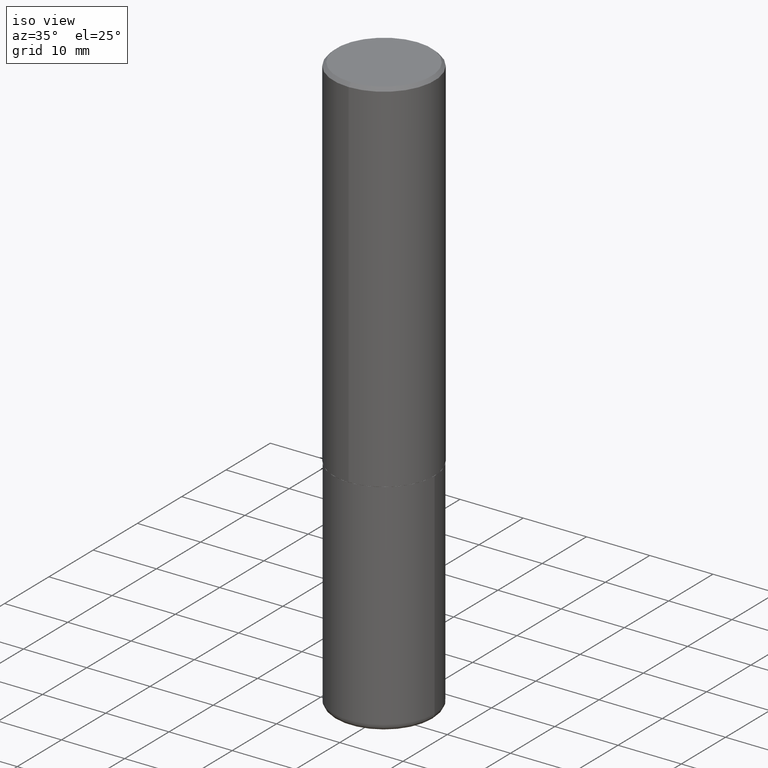
[diagram: clean part render]
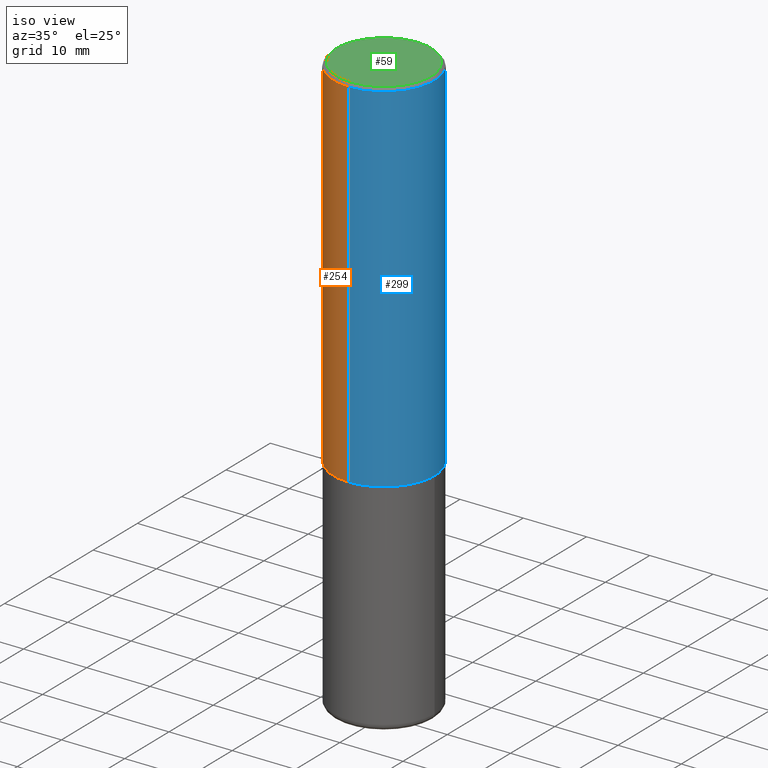
[diagram: same view with three faces highlighted in distinct colors, each labeled with its STEP entity id]
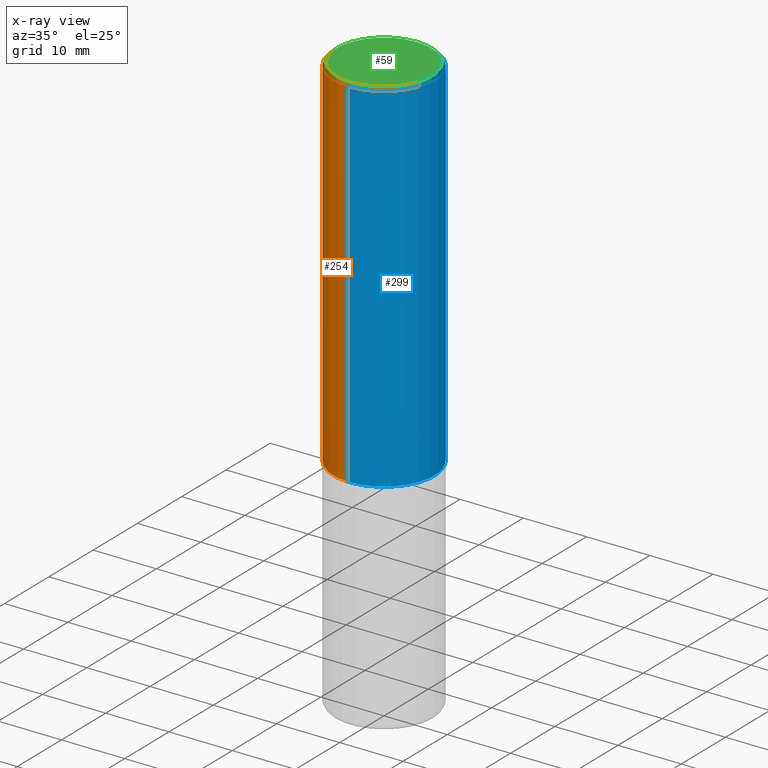
[diagram: x-ray of the same camera — body ghosted, the three highlighted faces saturated]
A machine part, iso view with three faces highlighted in distinct colors.
The next image is the same camera in x-ray (body ghosted, the three faces saturated) — at least one of them is partly hidden behind the body in this view.
Their STEP definitions:

[orange] entity #254 — the highlighted cylindrical surface (partial cylindrical patch) has radius 7.9997 mm, axis along (-0, 0, 1).
#15 = ORIENTED_EDGE ( 'NONE', *, *, #84, .F. ) ;
#18 = CIRCLE ( 'NONE', #329, 0.3149500000000000632 ) ;
#28 = FACE_OUTER_BOUND ( 'NONE', #170, .T. ) ;
#31 = CARTESIAN_POINT ( 'NONE',  ( 5.485775925940652970E-29, -7.830548597747266147E-15, -2.242999999999999883 ) ) ;
#42 = ORIENTED_EDGE ( 'NONE', *, *, #304, .T. ) ;
#62 = DIRECTION ( 'NONE',  ( -2.445731576433639542E-29, 3.491105036891335583E-15, 1.000000000000000000 ) ) ;
#67 = CYLINDRICAL_SURFACE ( 'NONE', #284, 0.3149500000000001743 ) ;
#69 = DIRECTION ( 'NONE',  ( -2.445731576433639542E-29, 3.491105036891335583E-15, 1.000000000000000000 ) ) ;
#73 = LINE ( 'NONE', #265, #88 ) ;
#80 = CIRCLE ( 'NONE', #239, 0.3149500000000002853 ) ;
#84 = EDGE_CURVE ( 'NONE', #281, #418, #122, .T. ) ;
#88 = VECTOR ( 'NONE', #295, 39.37007874015748143 ) ;
#97 = CARTESIAN_POINT ( 'NONE',  ( 0.000000000000000000, 0.000000000000000000, 0.000000000000000000 ) ) ;
#102 = ORIENTED_EDGE ( 'NONE', *, *, #384, .T. ) ;
#122 = LINE ( 'NONE', #414, #396 ) ;
#125 = DIRECTION ( 'NONE',  ( -2.445731576433639542E-29, 3.491105036891335583E-15, 1.000000000000000000 ) ) ;
#126 = DIRECTION ( 'NONE',  ( -2.445731576433639542E-29, 3.491105036891335583E-15, 1.000000000000000000 ) ) ;
#159 = CARTESIAN_POINT ( 'NONE',  ( 2.199284095337290265E-15, 0.3149500000000000077, -0.02000000000000116962 ) ) ;
#170 = EDGE_LOOP ( 'NONE', ( #15, #42, #102, #245 ) ) ;
#184 = CARTESIAN_POINT ( 'NONE',  ( 4.891463152867296425E-31, -6.982210073782693945E-17, -0.02000000000000006981 ) ) ;
#189 = DIRECTION ( 'NONE',  ( -6.982962677686265922E-15, -1.000000000000000000, 3.496670018878888311E-15 ) ) ;
#195 = CARTESIAN_POINT ( 'NONE',  ( -2.160713844398143757E-15, -0.3149500000000001743, -0.01999999999999896652 ) ) ;
#227 = VERTEX_POINT ( 'NONE', #320 ) ;
#239 = AXIS2_PLACEMENT_3D ( 'NONE', #31, #126, #262 ) ;
#245 = ORIENTED_EDGE ( 'NONE', *, *, #255, .F. ) ;
#254 = ADVANCED_FACE ( 'NONE', ( #28 ), #67, .T. ) ;
#255 = EDGE_CURVE ( 'NONE', #418, #389, #18, .T. ) ;
#262 = DIRECTION ( 'NONE',  ( -6.982962677686265922E-15, -1.000000000000000000, 3.469564049740290009E-15 ) ) ;
#265 = CARTESIAN_POINT ( 'NONE',  ( -2.199284095337290265E-15, -0.3149500000000001743, 1.099523531368926621E-15 ) ) ;
#281 = VERTEX_POINT ( 'NONE', #289 ) ;
#284 = AXIS2_PLACEMENT_3D ( 'NONE', #97, #62, #412 ) ;
#289 = CARTESIAN_POINT ( 'NONE',  ( 2.237854346276464384E-15, 0.3149499999999924027, -2.243000000000000771 ) ) ;
#295 = DIRECTION ( 'NONE',  ( -2.445731576433639542E-29, 3.491105036891335583E-15, 1.000000000000000000 ) ) ;
#304 = EDGE_CURVE ( 'NONE', #281, #227, #80, .T. ) ;
#320 = CARTESIAN_POINT ( 'NONE',  ( -2.199284095337236228E-15, -0.3149500000000081124, -2.242999999999998550 ) ) ;
#329 = AXIS2_PLACEMENT_3D ( 'NONE', #184, #69, #189 ) ;
#384 = EDGE_CURVE ( 'NONE', #227, #389, #73, .T. ) ;
#389 = VERTEX_POINT ( 'NONE', #195 ) ;
#396 = VECTOR ( 'NONE', #125, 39.37007874015748143 ) ;
#412 = DIRECTION ( 'NONE',  ( -6.982962677686264344E-15, -1.000000000000000000, 3.491105036891335189E-15 ) ) ;
#414 = CARTESIAN_POINT ( 'NONE',  ( 2.237854346276435985E-15, 0.3149500000000001743, -1.099523531368926621E-15 ) ) ;
#418 = VERTEX_POINT ( 'NONE', #159 ) ;

[blue] entity #299 — the highlighted cylindrical surface (partial cylindrical patch) has radius 7.9997 mm, axis along (-0, 0, 1).
#10 = CARTESIAN_POINT ( 'NONE',  ( 4.891463152867296425E-31, -6.982210073782693945E-17, -0.02000000000000006981 ) ) ;
#27 = ORIENTED_EDGE ( 'NONE', *, *, #84, .T. ) ;
#56 = DIRECTION ( 'NONE',  ( -6.982962677686265922E-15, -1.000000000000000000, 3.469564049740290009E-15 ) ) ;
#73 = LINE ( 'NONE', #265, #88 ) ;
#84 = EDGE_CURVE ( 'NONE', #281, #418, #122, .T. ) ;
#88 = VECTOR ( 'NONE', #295, 39.37007874015748143 ) ;
#90 = EDGE_CURVE ( 'NONE', #389, #418, #94, .T. ) ;
#94 = CIRCLE ( 'NONE', #379, 0.3149500000000000632 ) ;
#101 = EDGE_CURVE ( 'NONE', #227, #281, #151, .T. ) ;
#117 = AXIS2_PLACEMENT_3D ( 'NONE', #221, #156, #187 ) ;
#122 = LINE ( 'NONE', #414, #396 ) ;
#125 = DIRECTION ( 'NONE',  ( -2.445731576433639542E-29, 3.491105036891335583E-15, 1.000000000000000000 ) ) ;
#132 = ORIENTED_EDGE ( 'NONE', *, *, #101, .T. ) ;
#140 = DIRECTION ( 'NONE',  ( -6.982962677686265922E-15, -1.000000000000000000, 3.496670018878888311E-15 ) ) ;
#151 = CIRCLE ( 'NONE', #177, 0.3149500000000002853 ) ;
#156 = DIRECTION ( 'NONE',  ( -2.445731576433639542E-29, 3.491105036891335583E-15, 1.000000000000000000 ) ) ;
#159 = CARTESIAN_POINT ( 'NONE',  ( 2.199284095337290265E-15, 0.3149500000000000077, -0.02000000000000116962 ) ) ;
#174 = DIRECTION ( 'NONE',  ( -2.445731576433639542E-29, 3.491105036891335583E-15, 1.000000000000000000 ) ) ;
#177 = AXIS2_PLACEMENT_3D ( 'NONE', #401, #308, #56 ) ;
#187 = DIRECTION ( 'NONE',  ( -6.982962677686264344E-15, -1.000000000000000000, 3.491105036891335189E-15 ) ) ;
#194 = ORIENTED_EDGE ( 'NONE', *, *, #384, .F. ) ;
#195 = CARTESIAN_POINT ( 'NONE',  ( -2.160713844398143757E-15, -0.3149500000000001743, -0.01999999999999896652 ) ) ;
#196 = EDGE_LOOP ( 'NONE', ( #132, #27, #293, #194 ) ) ;
#221 = CARTESIAN_POINT ( 'NONE',  ( 0.000000000000000000, 0.000000000000000000, 0.000000000000000000 ) ) ;
#227 = VERTEX_POINT ( 'NONE', #320 ) ;
#265 = CARTESIAN_POINT ( 'NONE',  ( -2.199284095337290265E-15, -0.3149500000000001743, 1.099523531368926621E-15 ) ) ;
#281 = VERTEX_POINT ( 'NONE', #289 ) ;
#289 = CARTESIAN_POINT ( 'NONE',  ( 2.237854346276464384E-15, 0.3149499999999924027, -2.243000000000000771 ) ) ;
#293 = ORIENTED_EDGE ( 'NONE', *, *, #90, .F. ) ;
#295 = DIRECTION ( 'NONE',  ( -2.445731576433639542E-29, 3.491105036891335583E-15, 1.000000000000000000 ) ) ;
#299 = ADVANCED_FACE ( 'NONE', ( #404 ), #377, .T. ) ;
#308 = DIRECTION ( 'NONE',  ( -2.445731576433639542E-29, 3.491105036891335583E-15, 1.000000000000000000 ) ) ;
#320 = CARTESIAN_POINT ( 'NONE',  ( -2.199284095337236228E-15, -0.3149500000000081124, -2.242999999999998550 ) ) ;
#377 = CYLINDRICAL_SURFACE ( 'NONE', #117, 0.3149500000000001743 ) ;
#379 = AXIS2_PLACEMENT_3D ( 'NONE', #10, #174, #140 ) ;
#384 = EDGE_CURVE ( 'NONE', #227, #389, #73, .T. ) ;
#389 = VERTEX_POINT ( 'NONE', #195 ) ;
#396 = VECTOR ( 'NONE', #125, 39.37007874015748143 ) ;
#401 = CARTESIAN_POINT ( 'NONE',  ( 5.485775925940652970E-29, -7.830548597747266147E-15, -2.242999999999999883 ) ) ;
#404 = FACE_OUTER_BOUND ( 'NONE', #196, .T. ) ;
#414 = CARTESIAN_POINT ( 'NONE',  ( 2.237854346276435985E-15, 0.3149500000000001743, -1.099523531368926621E-15 ) ) ;
#418 = VERTEX_POINT ( 'NONE', #159 ) ;

[green] entity #59 — the highlighted planar face has unit normal (0, -0, -1).
#30 = FACE_OUTER_BOUND ( 'NONE', #127, .T. ) ;
#48 = CIRCLE ( 'NONE', #222, 0.2949499999999999345 ) ;
#59 = ADVANCED_FACE ( 'NONE', ( #30 ), #96, .F. ) ;
#71 = CARTESIAN_POINT ( 'NONE',  ( -2.092108864420428031E-15, -0.2949499999999999345, 1.153377302583324726E-15 ) ) ;
#89 = EDGE_CURVE ( 'NONE', #204, #296, #48, .T. ) ;
#96 = PLANE ( 'NONE',  #283 ) ;
#114 = DIRECTION ( 'NONE',  ( -2.445731576433639542E-29, 3.491105036891335583E-15, 1.000000000000000000 ) ) ;
#127 = EDGE_LOOP ( 'NONE', ( #282, #153 ) ) ;
#131 = DIRECTION ( 'NONE',  ( 2.445731576433639262E-29, -3.491105036891335583E-15, -1.000000000000000000 ) ) ;
#153 = ORIENTED_EDGE ( 'NONE', *, *, #89, .T. ) ;
#158 = CARTESIAN_POINT ( 'NONE',  ( 2.129454468560426967E-15, 0.2949499999999999345, -9.060255586788737993E-16 ) ) ;
#167 = AXIS2_PLACEMENT_3D ( 'NONE', #169, #321, #234 ) ;
#169 = CARTESIAN_POINT ( 'NONE',  ( -3.024779852765215528E-45, 4.317654595143425060E-31, 1.236758719522255372E-16 ) ) ;
#204 = VERTEX_POINT ( 'NONE', #71 ) ;
#222 = AXIS2_PLACEMENT_3D ( 'NONE', #261, #114, #305 ) ;
#234 = DIRECTION ( 'NONE',  ( -6.982962677686267499E-15, -1.000000000000000000, 3.491105036891335189E-15 ) ) ;
#261 = CARTESIAN_POINT ( 'NONE',  ( -3.024779852765215528E-45, 4.317654595143425060E-31, 1.236758719522255372E-16 ) ) ;
#282 = ORIENTED_EDGE ( 'NONE', *, *, #386, .T. ) ;
#283 = AXIS2_PLACEMENT_3D ( 'NONE', #417, #131, #288 ) ;
#288 = DIRECTION ( 'NONE',  ( 6.982962677686265922E-15, 1.000000000000000000, -3.491105036891335583E-15 ) ) ;
#296 = VERTEX_POINT ( 'NONE', #158 ) ;
#305 = DIRECTION ( 'NONE',  ( -6.982962677686267499E-15, -1.000000000000000000, 3.491105036891335189E-15 ) ) ;
#321 = DIRECTION ( 'NONE',  ( -2.445731576433639542E-29, 3.491105036891335583E-15, 1.000000000000000000 ) ) ;
#325 = CIRCLE ( 'NONE', #167, 0.2949499999999999345 ) ;
#386 = EDGE_CURVE ( 'NONE', #296, #204, #325, .T. ) ;
#417 = CARTESIAN_POINT ( 'NONE',  ( 2.059624841783564063E-15, 0.2949499999999999345, -9.678634946549864323E-16 ) ) ;